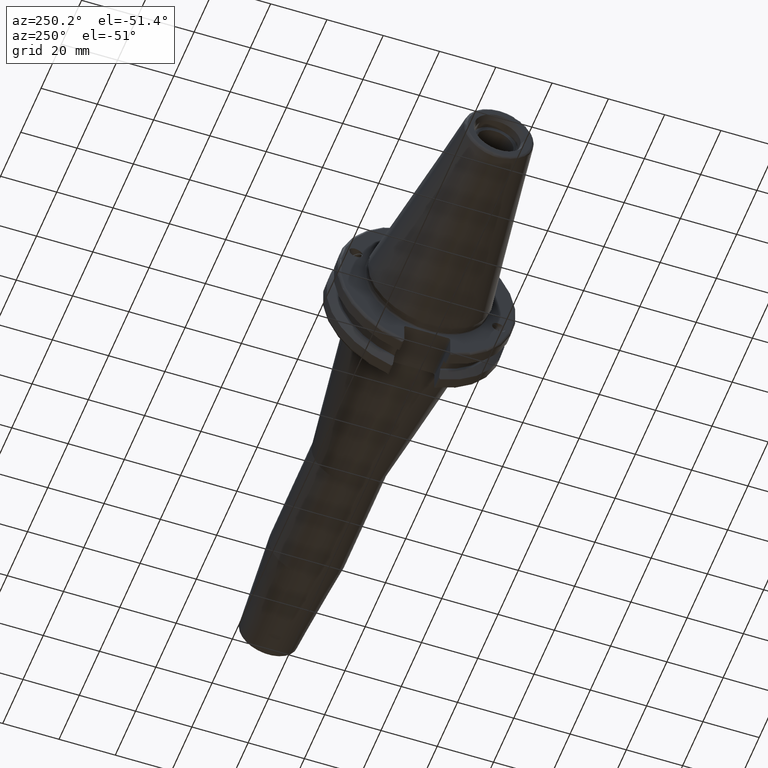
[diagram: clean part render]
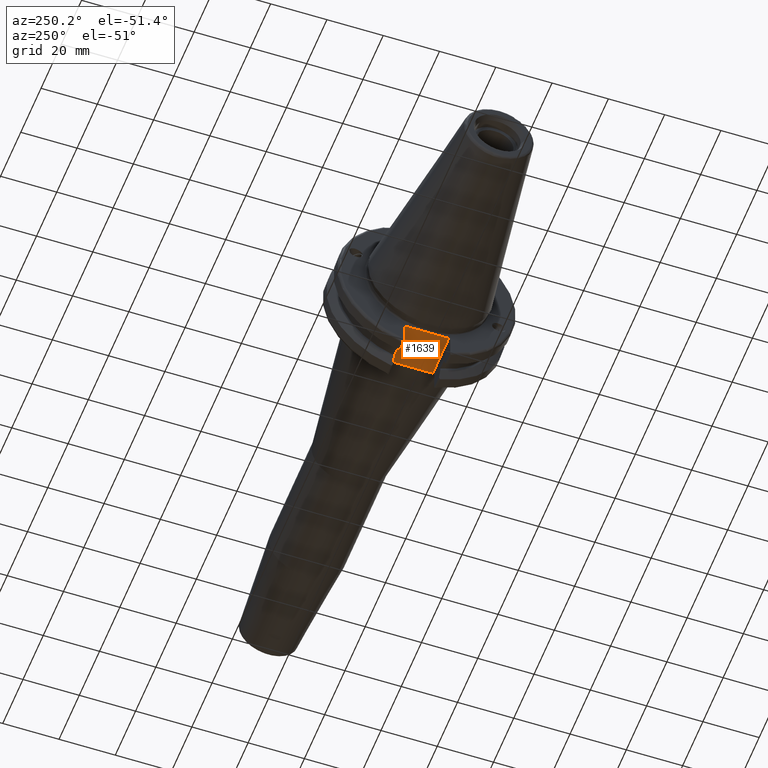
[diagram: same view with one face highlighted and labeled with its STEP entity id]
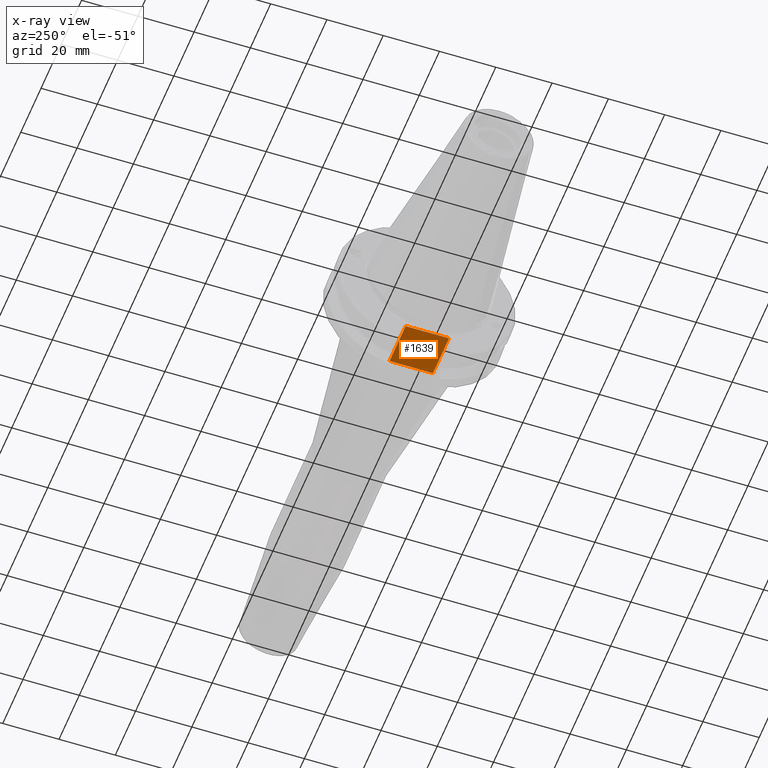
[diagram: x-ray of the same camera — body ghosted, the highlighted face saturated]
A machine part, auxiliary view. The second image highlights one B-rep face of the part: STEP entity #1639.
The next image is the same camera in x-ray: the body ghosted, the highlighted face saturated — about 0% of this face is hidden behind the body in this view.
In plain terms, the highlighted planar face has unit normal (0, 0, 1).
Its self-contained STEP definition (entity closure, byte-faithful):
#223=FACE_OUTER_BOUND('',#333,.T.);
#333=EDGE_LOOP('',(#1410,#1411,#1412,#1413));
#488=LINE('',#2854,#591);
#504=LINE('',#2940,#607);
#519=LINE('',#3091,#622);
#520=LINE('',#3093,#623);
#591=VECTOR('',#2171,10.);
#607=VECTOR('',#2205,10.);
#622=VECTOR('',#2266,10.);
#623=VECTOR('',#2269,10.);
#745=VERTEX_POINT('',#2851);
#746=VERTEX_POINT('',#2853);
#766=VERTEX_POINT('',#2937);
#767=VERTEX_POINT('',#2939);
#946=EDGE_CURVE('',#745,#746,#488,.T.);
#973=EDGE_CURVE('',#766,#767,#504,.T.);
#1013=EDGE_CURVE('',#767,#745,#519,.T.);
#1014=EDGE_CURVE('',#746,#766,#520,.T.);
#1410=ORIENTED_EDGE('',*,*,#1013,.F.);
#1411=ORIENTED_EDGE('',*,*,#973,.F.);
#1412=ORIENTED_EDGE('',*,*,#1014,.F.);
#1413=ORIENTED_EDGE('',*,*,#946,.F.);
#1557=PLANE('',#1840);
#1639=ADVANCED_FACE('',(#223),#1557,.F.);
#1840=AXIS2_PLACEMENT_3D('',#3092,#2267,#2268);
#2171=DIRECTION('',(0.,-1.,0.));
#2205=DIRECTION('',(0.,1.,0.));
#2266=DIRECTION('',(-1.,-1.31581988103722E-16,0.));
#2267=DIRECTION('center_axis',(0.,0.,1.));
#2268=DIRECTION('ref_axis',(1.,0.,0.));
#2269=DIRECTION('',(1.,0.,0.));
#2851=CARTESIAN_POINT('',(3.175,7.69,-22.6));
#2853=CARTESIAN_POINT('',(3.175,-7.69,-22.6));
#2854=CARTESIAN_POINT('',(3.175,15.875,-22.6));
#2937=CARTESIAN_POINT('',(19.05,-7.69,-22.6));
#2939=CARTESIAN_POINT('',(19.05,7.69,-22.6));
#2940=CARTESIAN_POINT('',(19.05,-2.77555756156289E-16,-22.6));
#3091=CARTESIAN_POINT('',(9.44125,7.69,-22.6));
#3092=CARTESIAN_POINT('Origin',(15.7075,-5.55111512312578E-16,-22.6));
#3093=CARTESIAN_POINT('',(17.87875,-7.69,-22.6));